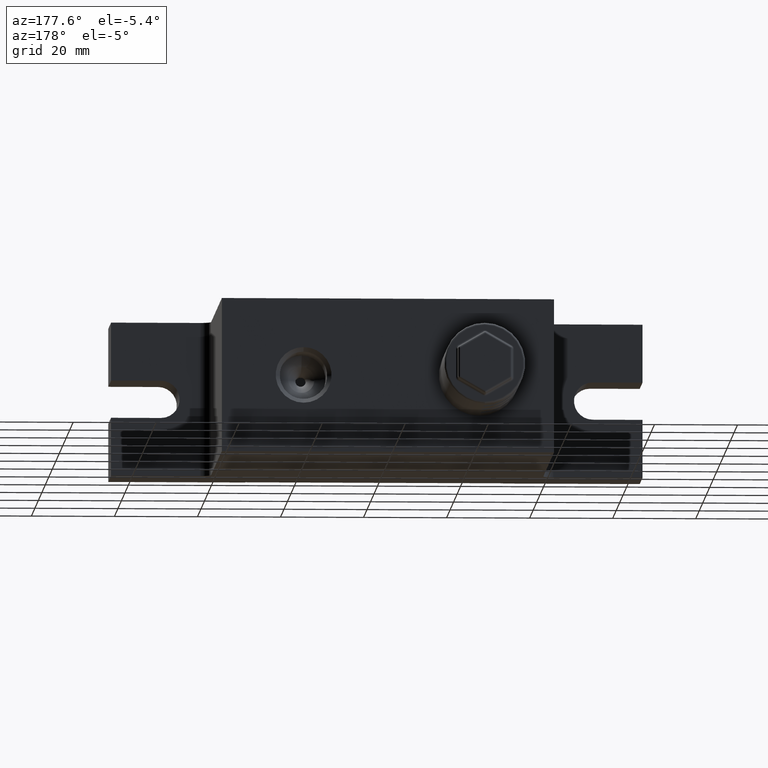
[diagram: clean part render]
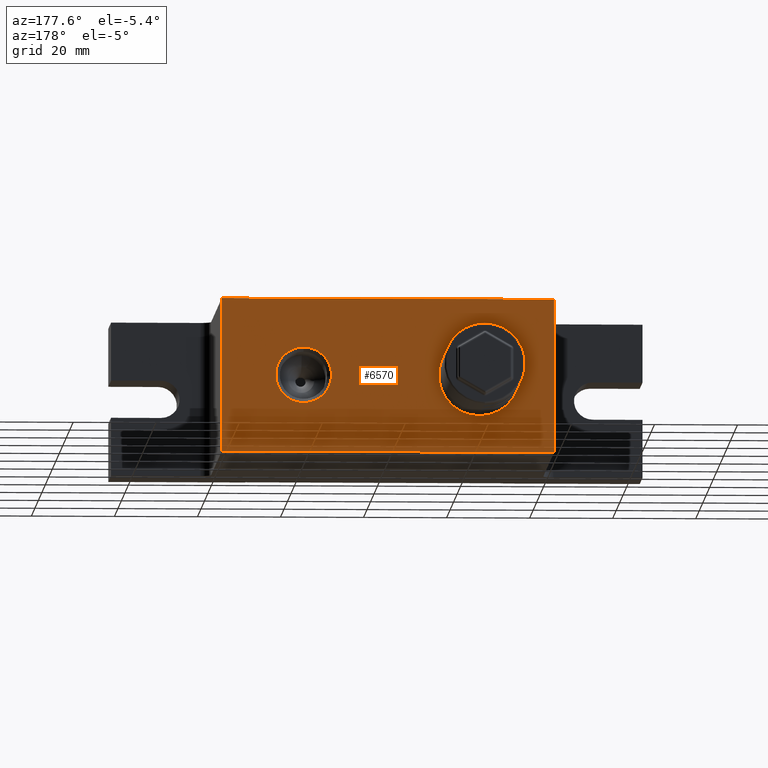
[diagram: same view with one face highlighted and labeled with its STEP entity id]
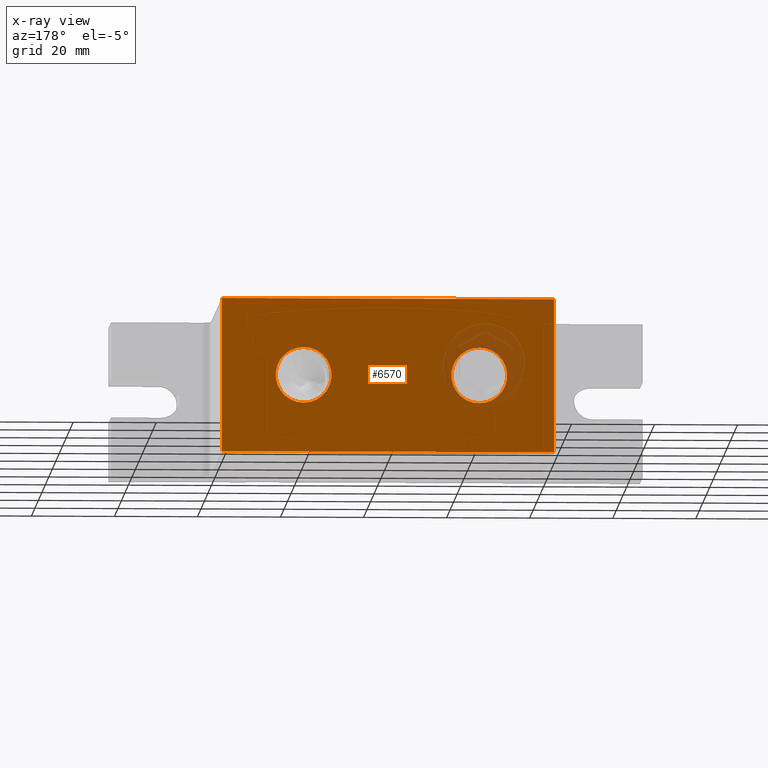
[diagram: x-ray of the same camera — body ghosted, the highlighted face saturated]
A machine part, auxiliary view. The second image highlights one B-rep face of the part: STEP entity #6570.
The next image is the same camera in x-ray: the body ghosted, the highlighted face saturated — about 7% of this face is hidden behind the body in this view.
In plain terms, the highlighted planar face has unit normal (0, -1, 0).
Its self-contained STEP definition (entity closure, byte-faithful):
#132 = CARTESIAN_POINT ( 'NONE',  ( 20.29999999999999700, 40.00000000000000000, 0.0000000000000000000 ) ) ;
#150 = DIRECTION ( 'NONE',  ( 0.0000000000000000000, 0.0000000000000000000, 1.000000000000000000 ) ) ;
#159 = CARTESIAN_POINT ( 'NONE',  ( -22.00000000000000000, 40.00000000000000000, 0.0000000000000000000 ) ) ;
#236 = FACE_BOUND ( 'NONE', #5325, .T. ) ;
#422 = LINE ( 'NONE', #5269, #5010 ) ;
#425 = EDGE_LOOP ( 'NONE', ( #4179, #2643 ) ) ;
#678 = EDGE_LOOP ( 'NONE', ( #6703, #5316, #4877, #7493 ) ) ;
#754 = ORIENTED_EDGE ( 'NONE', *, *, #7386, .T. ) ;
#838 = VERTEX_POINT ( 'NONE', #7350 ) ;
#878 = CARTESIAN_POINT ( 'NONE',  ( -22.00000000000000000, 40.00000000000000000, 6.722500000000008100 ) ) ;
#926 = CARTESIAN_POINT ( 'NONE',  ( 20.29999999999999700, 40.00000000000000000, -6.722500000000008100 ) ) ;
#1272 = CARTESIAN_POINT ( 'NONE',  ( -22.00000000000000000, 40.00000000000000000, -6.722500000000008100 ) ) ;
#1289 = VERTEX_POINT ( 'NONE', #1272 ) ;
#1300 = DIRECTION ( 'NONE',  ( 0.0000000000000000000, 0.0000000000000000000, -1.000000000000000000 ) ) ;
#1462 = VERTEX_POINT ( 'NONE', #878 ) ;
#1486 = CIRCLE ( 'NONE', #3948, 6.722500000000000100 ) ;
#1491 = VERTEX_POINT ( 'NONE', #926 ) ;
#1532 = EDGE_CURVE ( 'NONE', #2592, #6571, #2506, .T. ) ;
#1772 = CIRCLE ( 'NONE', #5561, 6.722500000000000100 ) ;
#1820 = CARTESIAN_POINT ( 'NONE',  ( -40.00000000000000000, 40.00000000000000000, -18.50000000000000000 ) ) ;
#1955 = VECTOR ( 'NONE', #3160, 1000.000000000000000 ) ;
#1962 = DIRECTION ( 'NONE',  ( 0.0000000000000000000, -1.000000000000000000, 0.0000000000000000000 ) ) ;
#1963 = EDGE_CURVE ( 'NONE', #1462, #1289, #6275, .T. ) ;
#2402 = CARTESIAN_POINT ( 'NONE',  ( -64.00000000000000000, 40.00000000000000000, -18.50000000000000000 ) ) ;
#2506 = LINE ( 'NONE', #6608, #1955 ) ;
#2513 = CARTESIAN_POINT ( 'NONE',  ( -64.00000000000000000, 40.00000000000000000, 18.50000000000000000 ) ) ;
#2560 = CARTESIAN_POINT ( 'NONE',  ( -40.00000000000000000, 40.00000000000000000, -18.50000000000000000 ) ) ;
#2592 = VERTEX_POINT ( 'NONE', #4326 ) ;
#2643 = ORIENTED_EDGE ( 'NONE', *, *, #6066, .T. ) ;
#3035 = FACE_BOUND ( 'NONE', #425, .T. ) ;
#3047 = AXIS2_PLACEMENT_3D ( 'NONE', #6692, #3224, #4949 ) ;
#3119 = FACE_OUTER_BOUND ( 'NONE', #678, .T. ) ;
#3160 = DIRECTION ( 'NONE',  ( 0.0000000000000000000, 0.0000000000000000000, 1.000000000000000000 ) ) ;
#3178 = DIRECTION ( 'NONE',  ( 0.0000000000000000000, -1.000000000000000000, 0.0000000000000000000 ) ) ;
#3224 = DIRECTION ( 'NONE',  ( 0.0000000000000000000, -1.000000000000000000, 0.0000000000000000000 ) ) ;
#3411 = VECTOR ( 'NONE', #150, 1000.000000000000000 ) ;
#3553 = EDGE_CURVE ( 'NONE', #838, #1491, #1486, .T. ) ;
#3588 = DIRECTION ( 'NONE',  ( -1.000000000000000000, 0.0000000000000000000, 0.0000000000000000000 ) ) ;
#3637 = CARTESIAN_POINT ( 'NONE',  ( 40.00000000000000000, 40.00000000000000000, 18.50000000000000000 ) ) ;
#3726 = DIRECTION ( 'NONE',  ( 0.0000000000000000000, -1.000000000000000000, 0.0000000000000000000 ) ) ;
#3948 = AXIS2_PLACEMENT_3D ( 'NONE', #6059, #3726, #4340 ) ;
#4059 = EDGE_CURVE ( 'NONE', #7435, #7305, #4766, .T. ) ;
#4091 = DIRECTION ( 'NONE',  ( 0.0000000000000000000, -1.000000000000000000, 0.0000000000000000000 ) ) ;
#4179 = ORIENTED_EDGE ( 'NONE', *, *, #1963, .T. ) ;
#4195 = VECTOR ( 'NONE', #3588, 1000.000000000000000 ) ;
#4219 = DIRECTION ( 'NONE',  ( 0.0000000000000000000, 0.0000000000000000000, -1.000000000000000000 ) ) ;
#4326 = CARTESIAN_POINT ( 'NONE',  ( 40.00000000000000000, 40.00000000000000000, -18.50000000000000000 ) ) ;
#4340 = DIRECTION ( 'NONE',  ( 0.0000000000000000000, 0.0000000000000000000, -1.000000000000000000 ) ) ;
#4766 = LINE ( 'NONE', #2560, #3411 ) ;
#4877 = ORIENTED_EDGE ( 'NONE', *, *, #5633, .T. ) ;
#4949 = DIRECTION ( 'NONE',  ( 0.0000000000000000000, 0.0000000000000000000, -1.000000000000000000 ) ) ;
#5010 = VECTOR ( 'NONE', #7021, 1000.000000000000000 ) ;
#5051 = EDGE_CURVE ( 'NONE', #6571, #7305, #422, .T. ) ;
#5113 = AXIS2_PLACEMENT_3D ( 'NONE', #159, #1962, #4219 ) ;
#5269 = CARTESIAN_POINT ( 'NONE',  ( -64.00000000000000000, 40.00000000000000000, 18.50000000000000000 ) ) ;
#5316 = ORIENTED_EDGE ( 'NONE', *, *, #1532, .F. ) ;
#5325 = EDGE_LOOP ( 'NONE', ( #6433, #754 ) ) ;
#5350 = LINE ( 'NONE', #2402, #4195 ) ;
#5561 = AXIS2_PLACEMENT_3D ( 'NONE', #132, #4091, #1300 ) ;
#5633 = EDGE_CURVE ( 'NONE', #2592, #7435, #5350, .T. ) ;
#5718 = CARTESIAN_POINT ( 'NONE',  ( -40.00000000000000000, 40.00000000000000000, 18.50000000000000000 ) ) ;
#5727 = CIRCLE ( 'NONE', #3047, 6.722500000000000100 ) ;
#6027 = AXIS2_PLACEMENT_3D ( 'NONE', #2513, #3178, #6575 ) ;
#6059 = CARTESIAN_POINT ( 'NONE',  ( 20.29999999999999700, 40.00000000000000000, 0.0000000000000000000 ) ) ;
#6066 = EDGE_CURVE ( 'NONE', #1289, #1462, #5727, .T. ) ;
#6275 = CIRCLE ( 'NONE', #5113, 6.722500000000000100 ) ;
#6433 = ORIENTED_EDGE ( 'NONE', *, *, #3553, .T. ) ;
#6522 = PLANE ( 'NONE',  #6027 ) ;
#6570 = ADVANCED_FACE ( 'NONE', ( #236, #3035, #3119 ), #6522, .F. ) ;
#6571 = VERTEX_POINT ( 'NONE', #3637 ) ;
#6575 = DIRECTION ( 'NONE',  ( 0.0000000000000000000, 0.0000000000000000000, -1.000000000000000000 ) ) ;
#6608 = CARTESIAN_POINT ( 'NONE',  ( 40.00000000000000000, 40.00000000000000000, -18.50000000000000000 ) ) ;
#6692 = CARTESIAN_POINT ( 'NONE',  ( -22.00000000000000000, 40.00000000000000000, 0.0000000000000000000 ) ) ;
#6703 = ORIENTED_EDGE ( 'NONE', *, *, #5051, .F. ) ;
#7021 = DIRECTION ( 'NONE',  ( -1.000000000000000000, 0.0000000000000000000, 0.0000000000000000000 ) ) ;
#7305 = VERTEX_POINT ( 'NONE', #5718 ) ;
#7350 = CARTESIAN_POINT ( 'NONE',  ( 20.29999999999999700, 40.00000000000000000, 6.722500000000008100 ) ) ;
#7386 = EDGE_CURVE ( 'NONE', #1491, #838, #1772, .T. ) ;
#7435 = VERTEX_POINT ( 'NONE', #1820 ) ;
#7493 = ORIENTED_EDGE ( 'NONE', *, *, #4059, .T. ) ;